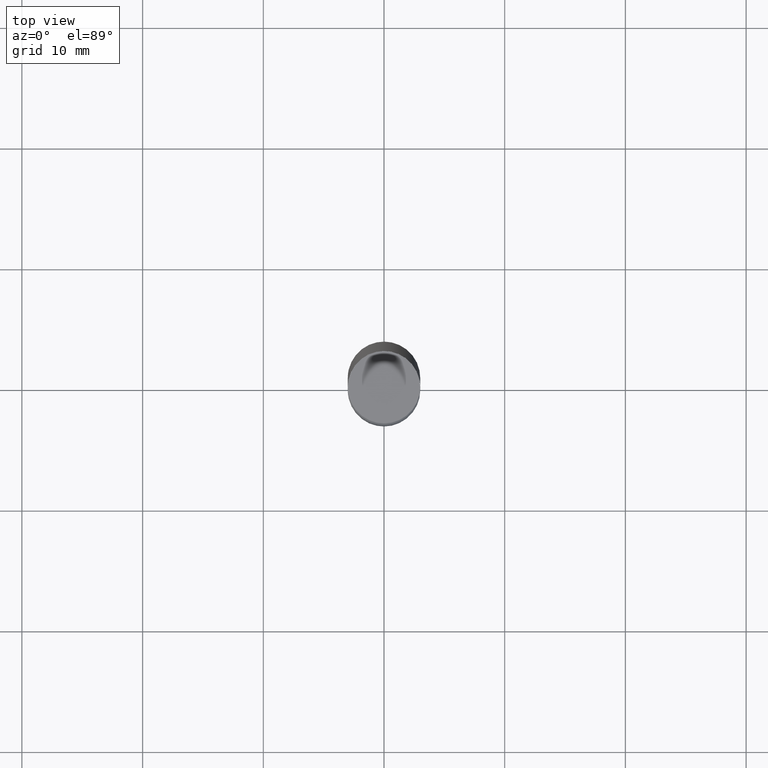
[diagram: clean part render]
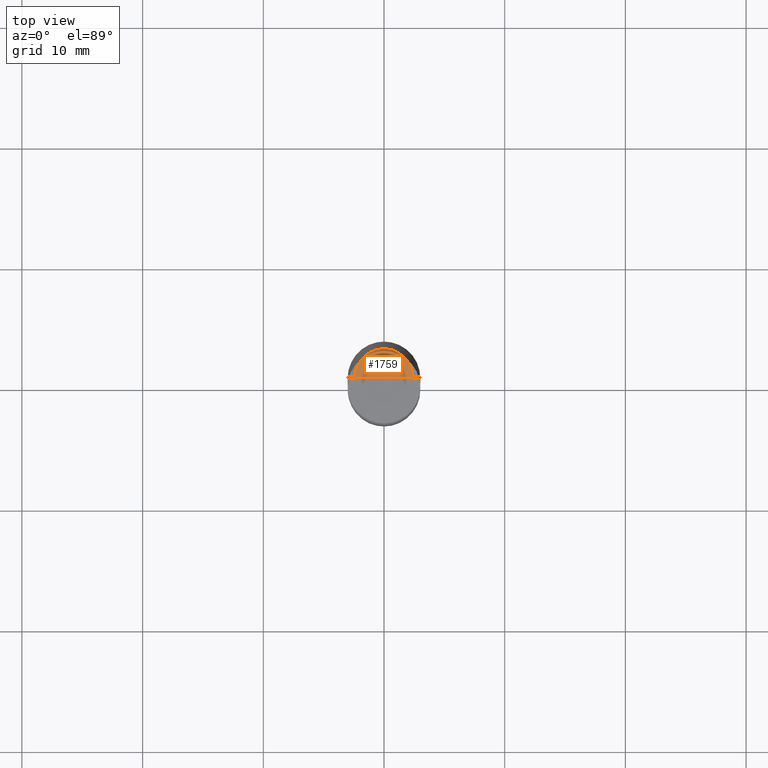
[diagram: same view with one face highlighted and labeled with its STEP entity id]
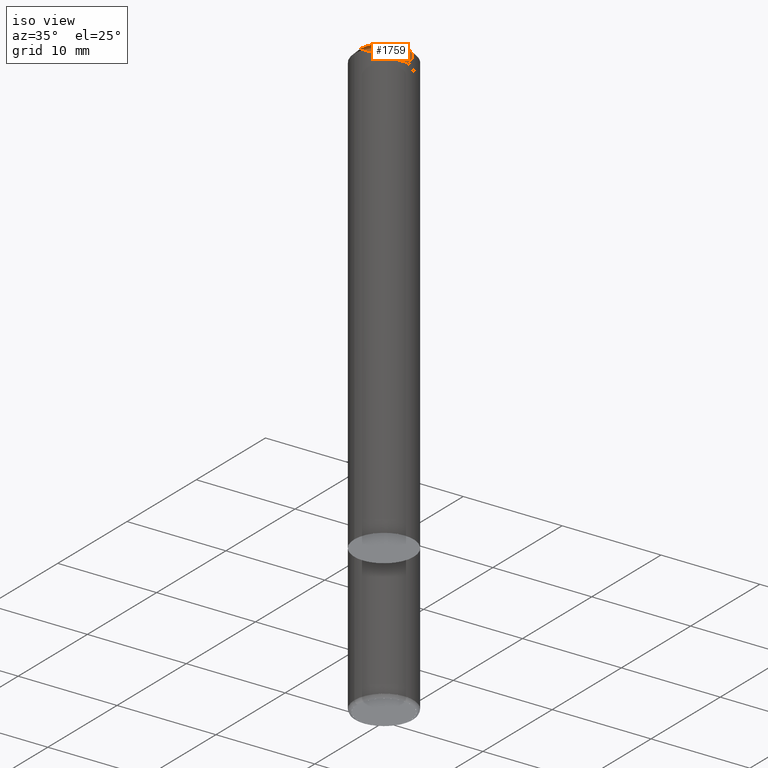
[diagram: same view with one face highlighted and labeled with its STEP entity id]
A machine part, top view. The second image highlights one B-rep face of the part: STEP entity #1759.
A second angle (iso view) of the same face is appended — the face is thin or edge-on in the first view.
In plain terms, the highlighted face is a freeform B-spline surface patch.
Its self-contained STEP definition (entity closure, byte-faithful):
#1519=CARTESIAN_POINT('',(2.4,0.0,45.0));
#1520=CARTESIAN_POINT('',(2.4,2.4,45.0));
#1521=CARTESIAN_POINT('',(0.0,2.4,45.0));
#1522=CARTESIAN_POINT('',(-2.4,2.4,45.0));
#1523=CARTESIAN_POINT('',(-2.4,0.0,45.0));
#1524=CARTESIAN_POINT('',(0.0,0.0,45.0));
#1744=(
BOUNDED_SURFACE()
B_SPLINE_SURFACE(1,2,(
(#1519,#1520,#1521,#1522,#1523),
(#1524,#1524,#1524,#1524,#1524)
), .UNSPECIFIED.,.F.,.F.,.F.)
B_SPLINE_SURFACE_WITH_KNOTS((2,2),(3,2,3),(
0.0,1.0),(
0.0,0.5,1.0), .UNSPECIFIED.)
GEOMETRIC_REPRESENTATION_ITEM()
RATIONAL_B_SPLINE_SURFACE(((1.0,0.707106781187,1.0,0.707106781187,1.0),
(1.0,0.707106781187,1.0,0.707106781187,1.0)
))
REPRESENTATION_ITEM('')
SURFACE()
);
#1745=(
BOUNDED_CURVE()
B_SPLINE_CURVE(1,(#1524,#1519),.UNSPECIFIED.,.F.,.F.)
B_SPLINE_CURVE_WITH_KNOTS((2,2),
(0.0,1.0),.UNSPECIFIED.)
CURVE()
GEOMETRIC_REPRESENTATION_ITEM()
RATIONAL_B_SPLINE_CURVE((1.0,1.0))
REPRESENTATION_ITEM('')
);
#1746=(
BOUNDED_CURVE()
B_SPLINE_CURVE(2,(#1519,#1520,#1521,#1522,#1523),.UNSPECIFIED.,.F.,.F.)
B_SPLINE_CURVE_WITH_KNOTS((3,2,3),
(0.0,0.5,1.0),.UNSPECIFIED.)
CURVE()
GEOMETRIC_REPRESENTATION_ITEM()
RATIONAL_B_SPLINE_CURVE((1.0,0.707106781187,1.0,0.707106781187,1.0))
REPRESENTATION_ITEM('')
);
#1747=(
BOUNDED_CURVE()
B_SPLINE_CURVE(1,(#1523,#1524),.UNSPECIFIED.,.F.,.F.)
B_SPLINE_CURVE_WITH_KNOTS((2,2),
(0.0,1.0),.UNSPECIFIED.)
CURVE()
GEOMETRIC_REPRESENTATION_ITEM()
RATIONAL_B_SPLINE_CURVE((1.0,1.0))
REPRESENTATION_ITEM('')
);
#1748=VERTEX_POINT('',#1519);
#1749=VERTEX_POINT('',#1523);
#1750=VERTEX_POINT('',#1524);
#1751=EDGE_CURVE('',#1750,#1748,#1745,.T.);
#1752=EDGE_CURVE('',#1748,#1749,#1746,.T.);
#1753=EDGE_CURVE('',#1749,#1750,#1747,.T.);
#1754=ORIENTED_EDGE('',*,*,#1751,.T.);
#1755=ORIENTED_EDGE('',*,*,#1752,.T.);
#1756=ORIENTED_EDGE('',*,*,#1753,.T.);
#1757=EDGE_LOOP('',(#1754,#1755,#1756));
#1758=FACE_OUTER_BOUND('',#1757,.T.);
#1759=ADVANCED_FACE('',(#1758),#1744,.T.);